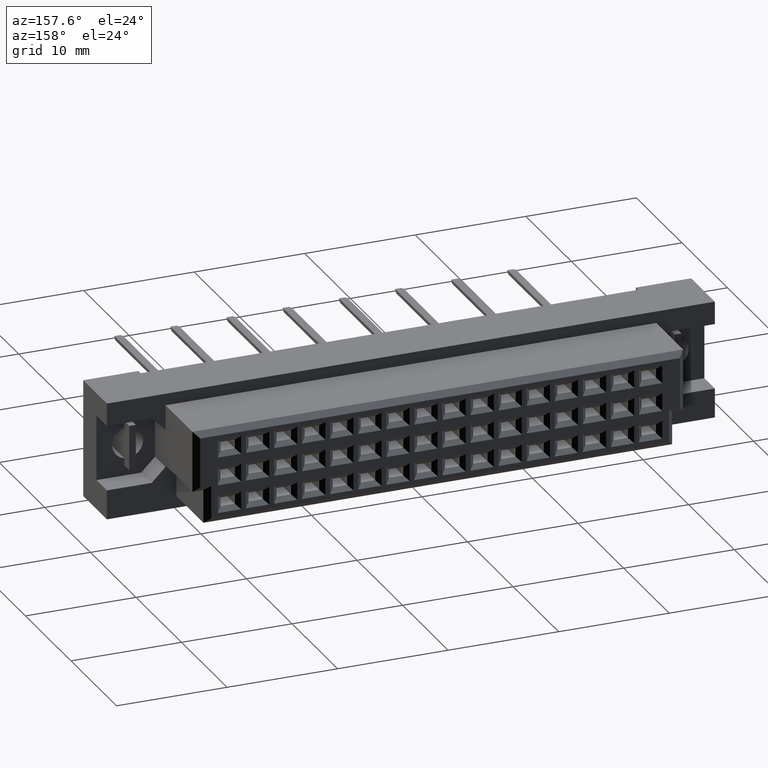
[diagram: clean part render]
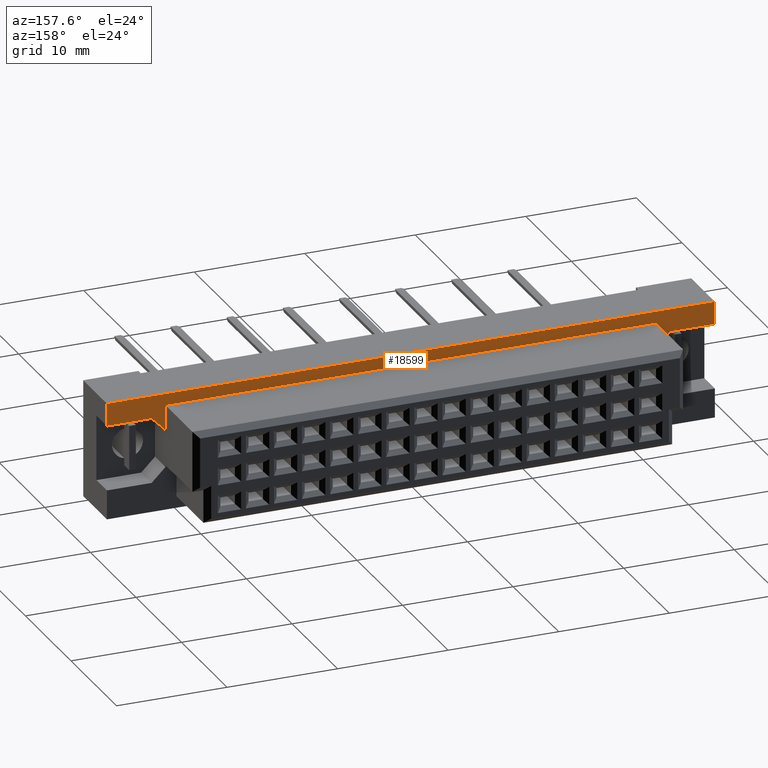
[diagram: same view with one face highlighted and labeled with its STEP entity id]
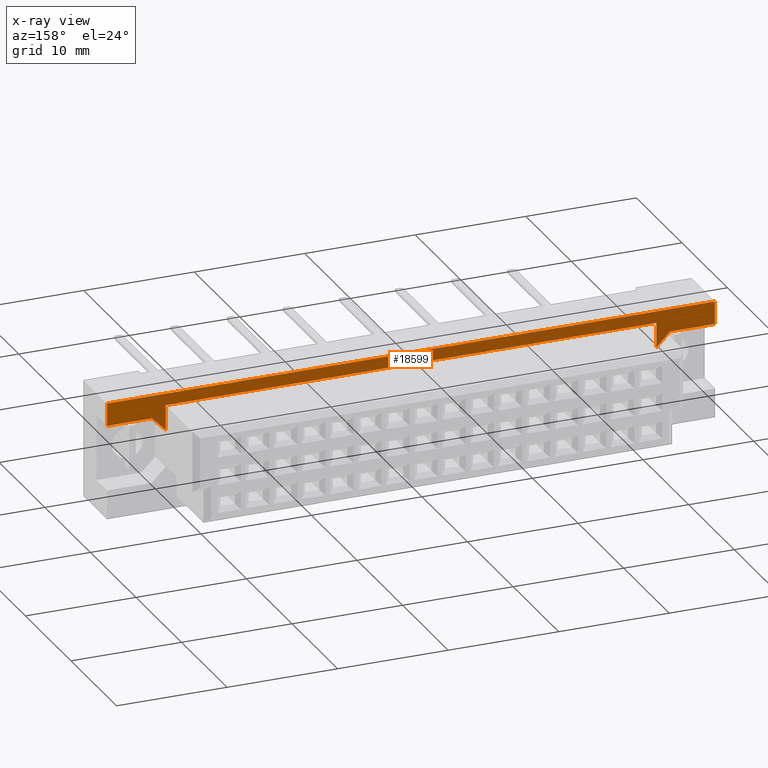
[diagram: x-ray of the same camera — body ghosted, the highlighted face saturated]
A machine part, auxiliary view. The second image highlights one B-rep face of the part: STEP entity #18599.
The next image is the same camera in x-ray: the body ghosted, the highlighted face saturated — about 0% of this face is hidden behind the body in this view.
In plain terms, the highlighted planar face has unit normal (0, 1, 0).
Its self-contained STEP definition (entity closure, byte-faithful):
#195 = CARTESIAN_POINT ( 'NONE',  ( 22.19999999999999218, -6.400000000000001243, 4.250000000000000888 ) ) ;
#672 = LINE ( 'NONE', #20044, #20889 ) ;
#1123 = EDGE_LOOP ( 'NONE', ( #7722, #11391, #1339, #12640, #15835, #18999, #9220, #1391, #12593, #11223 ) ) ;
#1339 = ORIENTED_EDGE ( 'NONE', *, *, #6802, .F. ) ;
#1341 = DIRECTION ( 'NONE',  ( 0.0000000000000000000, 1.000000000000000000, -0.0000000000000000000 ) ) ;
#1391 = ORIENTED_EDGE ( 'NONE', *, *, #4246, .T. ) ;
#1896 = CARTESIAN_POINT ( 'NONE',  ( -22.19999999999999218, -6.400000000000001243, 4.250000000000000888 ) ) ;
#2139 = CARTESIAN_POINT ( 'NONE',  ( 22.19999999999999218, -6.400000000000001243, 4.250000000000000888 ) ) ;
#2171 = EDGE_CURVE ( 'NONE', #6739, #15867, #16489, .T. ) ;
#2304 = LINE ( 'NONE', #16923, #14086 ) ;
#3509 = EDGE_CURVE ( 'NONE', #13393, #6137, #7163, .T. ) ;
#3587 = EDGE_CURVE ( 'NONE', #4340, #6739, #14238, .T. ) ;
#3770 = CARTESIAN_POINT ( 'NONE',  ( 27.50000000000000355, -6.400000000000001243, 3.250000000000001776 ) ) ;
#3832 = DIRECTION ( 'NONE',  ( 1.000000000000000000, -0.0000000000000000000, -0.0000000000000000000 ) ) ;
#4243 = EDGE_CURVE ( 'NONE', #10945, #14256, #9391, .T. ) ;
#4246 = EDGE_CURVE ( 'NONE', #11330, #10945, #18931, .T. ) ;
#4340 = VERTEX_POINT ( 'NONE', #11886 ) ;
#4362 = EDGE_CURVE ( 'NONE', #14256, #15867, #672, .T. ) ;
#4413 = DIRECTION ( 'NONE',  ( 0.0000000000000000000, 0.0000000000000000000, 1.000000000000000000 ) ) ;
#4516 = CARTESIAN_POINT ( 'NONE',  ( -27.50000000000000355, -6.400000000000001243, 5.299999999999999822 ) ) ;
#5456 = VERTEX_POINT ( 'NONE', #195 ) ;
#5520 = CARTESIAN_POINT ( 'NONE',  ( -27.50000000000000355, -6.400000000000001243, -5.299999999999999822 ) ) ;
#6137 = VERTEX_POINT ( 'NONE', #13807 ) ;
#6739 = VERTEX_POINT ( 'NONE', #11092 ) ;
#6802 = EDGE_CURVE ( 'NONE', #5456, #4340, #2304, .T. ) ;
#6953 = DIRECTION ( 'NONE',  ( 0.0000000000000000000, 0.0000000000000000000, -1.000000000000000000 ) ) ;
#7163 = LINE ( 'NONE', #13627, #10920 ) ;
#7574 = CARTESIAN_POINT ( 'NONE',  ( -27.50000000000000355, -6.400000000000001243, -5.299999999999999822 ) ) ;
#7722 = ORIENTED_EDGE ( 'NONE', *, *, #2171, .F. ) ;
#7753 = CARTESIAN_POINT ( 'NONE',  ( -23.44999999999999218, -6.400000000000001243, 3.250000000000001332 ) ) ;
#8075 = VECTOR ( 'NONE', #9184, 1000.000000000000000 ) ;
#8088 = DIRECTION ( 'NONE',  ( 0.7071067811865474617, 0.0000000000000000000, -0.7071067811865474617 ) ) ;
#8214 = DIRECTION ( 'NONE',  ( 1.000000000000000000, -0.0000000000000000000, 1.070816960479507419E-16 ) ) ;
#8397 = LINE ( 'NONE', #2139, #10607 ) ;
#9167 = FACE_OUTER_BOUND ( 'NONE', #1123, .T. ) ;
#9184 = DIRECTION ( 'NONE',  ( 1.000000000000000000, 0.0000000000000000000, 0.0000000000000000000 ) ) ;
#9220 = ORIENTED_EDGE ( 'NONE', *, *, #9697, .F. ) ;
#9272 = DIRECTION ( 'NONE',  ( 0.0000000000000000000, 0.0000000000000000000, 1.000000000000000000 ) ) ;
#9330 = LINE ( 'NONE', #17589, #11317 ) ;
#9391 = LINE ( 'NONE', #4516, #8075 ) ;
#9697 = EDGE_CURVE ( 'NONE', #11330, #13393, #9330, .T. ) ;
#9813 = CARTESIAN_POINT ( 'NONE',  ( 27.49999999999999645, -6.400000000000001243, 5.299999999999999822 ) ) ;
#10281 = VECTOR ( 'NONE', #12061, 1000.000000000000000 ) ;
#10607 = VECTOR ( 'NONE', #3832, 1000.000000000000000 ) ;
#10920 = VECTOR ( 'NONE', #8088, 1000.000000000000114 ) ;
#10945 = VERTEX_POINT ( 'NONE', #11228 ) ;
#11092 = CARTESIAN_POINT ( 'NONE',  ( 23.44999999999999218, -6.400000000000001243, 3.250000000000001332 ) ) ;
#11223 = ORIENTED_EDGE ( 'NONE', *, *, #4362, .T. ) ;
#11228 = CARTESIAN_POINT ( 'NONE',  ( -27.50000000000000355, -6.400000000000001243, 5.299999999999999822 ) ) ;
#11317 = VECTOR ( 'NONE', #14203, 1000.000000000000000 ) ;
#11330 = VERTEX_POINT ( 'NONE', #17573 ) ;
#11391 = ORIENTED_EDGE ( 'NONE', *, *, #3587, .F. ) ;
#11507 = VERTEX_POINT ( 'NONE', #1896 ) ;
#11886 = CARTESIAN_POINT ( 'NONE',  ( 22.19999999999999218, -6.400000000000001243, 2.000000000000000000 ) ) ;
#12061 = DIRECTION ( 'NONE',  ( 0.0000000000000000000, 0.0000000000000000000, 1.000000000000000000 ) ) ;
#12593 = ORIENTED_EDGE ( 'NONE', *, *, #4243, .T. ) ;
#12640 = ORIENTED_EDGE ( 'NONE', *, *, #18009, .F. ) ;
#13393 = VERTEX_POINT ( 'NONE', #7753 ) ;
#13627 = CARTESIAN_POINT ( 'NONE',  ( -23.44999999999999218, -6.400000000000001243, 3.250000000000001332 ) ) ;
#13807 = CARTESIAN_POINT ( 'NONE',  ( -22.19999999999999218, -6.400000000000001243, 2.000000000000000888 ) ) ;
#14086 = VECTOR ( 'NONE', #6953, 1000.000000000000000 ) ;
#14203 = DIRECTION ( 'NONE',  ( 1.000000000000000000, 0.0000000000000000000, -1.070816960479507419E-16 ) ) ;
#14238 = LINE ( 'NONE', #19221, #18591 ) ;
#14256 = VERTEX_POINT ( 'NONE', #9813 ) ;
#15635 = PLANE ( 'NONE',  #19430 ) ;
#15835 = ORIENTED_EDGE ( 'NONE', *, *, #18469, .F. ) ;
#15867 = VERTEX_POINT ( 'NONE', #19335 ) ;
#16489 = LINE ( 'NONE', #3770, #17558 ) ;
#16923 = CARTESIAN_POINT ( 'NONE',  ( 22.19999999999999218, -6.400000000000001243, 4.250000000000000888 ) ) ;
#17024 = LINE ( 'NONE', #20107, #10281 ) ;
#17558 = VECTOR ( 'NONE', #8214, 1000.000000000000000 ) ;
#17573 = CARTESIAN_POINT ( 'NONE',  ( -27.50000000000000355, -6.400000000000001243, 3.250000000000001776 ) ) ;
#17589 = CARTESIAN_POINT ( 'NONE',  ( -27.50000000000000355, -6.400000000000001243, 3.250000000000001776 ) ) ;
#17624 = DIRECTION ( 'NONE',  ( 0.7071067811865474617, -0.0000000000000000000, 0.7071067811865474617 ) ) ;
#18009 = EDGE_CURVE ( 'NONE', #11507, #5456, #8397, .T. ) ;
#18237 = VECTOR ( 'NONE', #4413, 1000.000000000000000 ) ;
#18469 = EDGE_CURVE ( 'NONE', #6137, #11507, #17024, .T. ) ;
#18591 = VECTOR ( 'NONE', #17624, 1000.000000000000114 ) ;
#18599 = ADVANCED_FACE ( 'NONE', ( #9167 ), #15635, .T. ) ;
#18931 = LINE ( 'NONE', #5520, #18237 ) ;
#18999 = ORIENTED_EDGE ( 'NONE', *, *, #3509, .F. ) ;
#19221 = CARTESIAN_POINT ( 'NONE',  ( 23.44999999999999218, -6.400000000000001243, 3.250000000000001332 ) ) ;
#19335 = CARTESIAN_POINT ( 'NONE',  ( 27.50000000000000355, -6.400000000000001243, 3.250000000000001776 ) ) ;
#19430 = AXIS2_PLACEMENT_3D ( 'NONE', #7574, #1341, #9272 ) ;
#20044 = CARTESIAN_POINT ( 'NONE',  ( 27.49999999999999645, -6.400000000000001243, 5.299999999999999822 ) ) ;
#20107 = CARTESIAN_POINT ( 'NONE',  ( -22.19999999999999218, -6.400000000000001243, -4.250000000000000888 ) ) ;
#20150 = DIRECTION ( 'NONE',  ( 0.0000000000000000000, 0.0000000000000000000, -1.000000000000000000 ) ) ;
#20889 = VECTOR ( 'NONE', #20150, 1000.000000000000000 ) ;